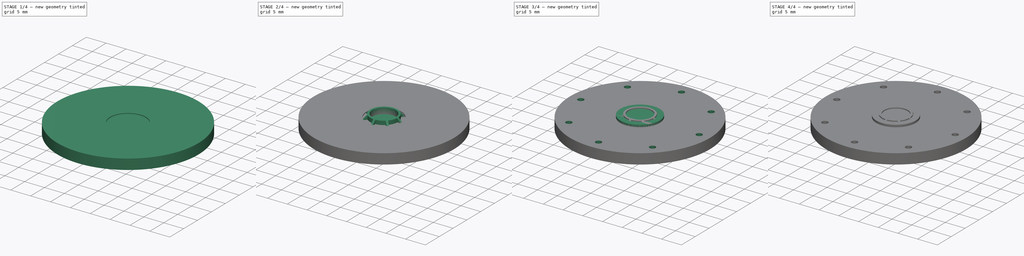
[diagram: build sequence overview — one tinted view per stage of 4, left to right]
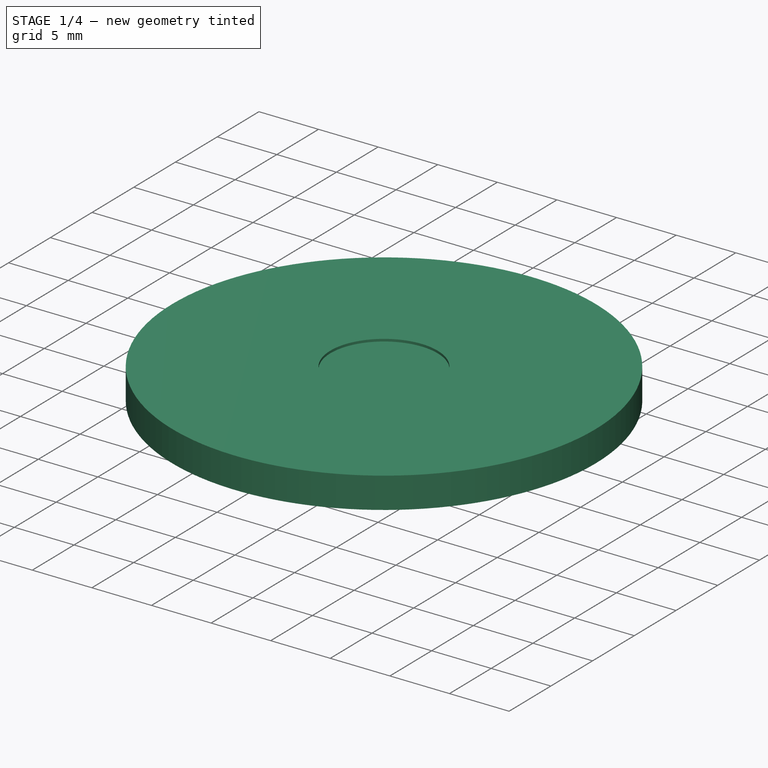
[diagram: stage 1 of 4 — iso view after this stage's code; geometry added in this stage tinted green]
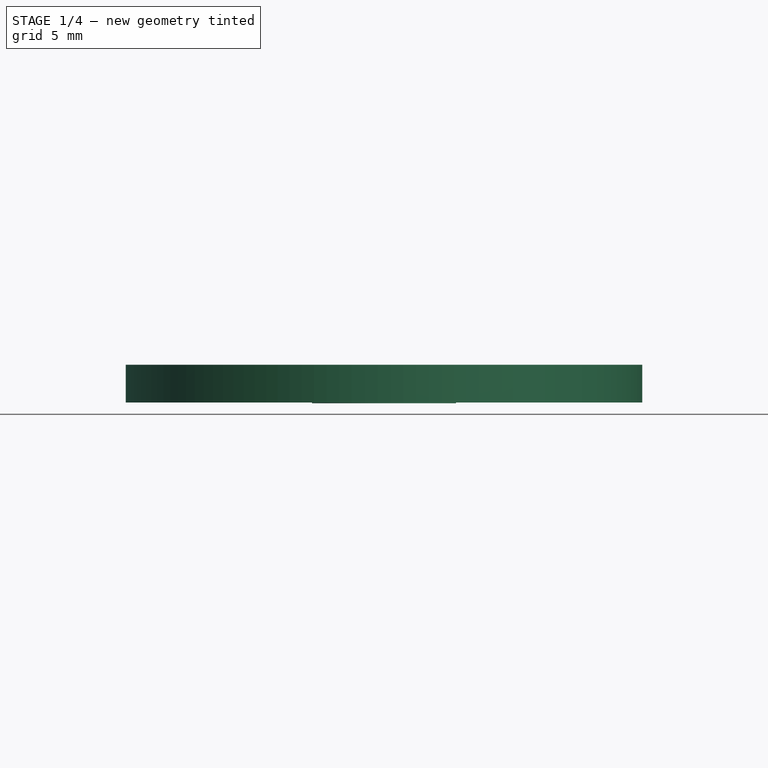
[diagram: stage 1 of 4 — front view after this stage's code; geometry added in this stage tinted green]
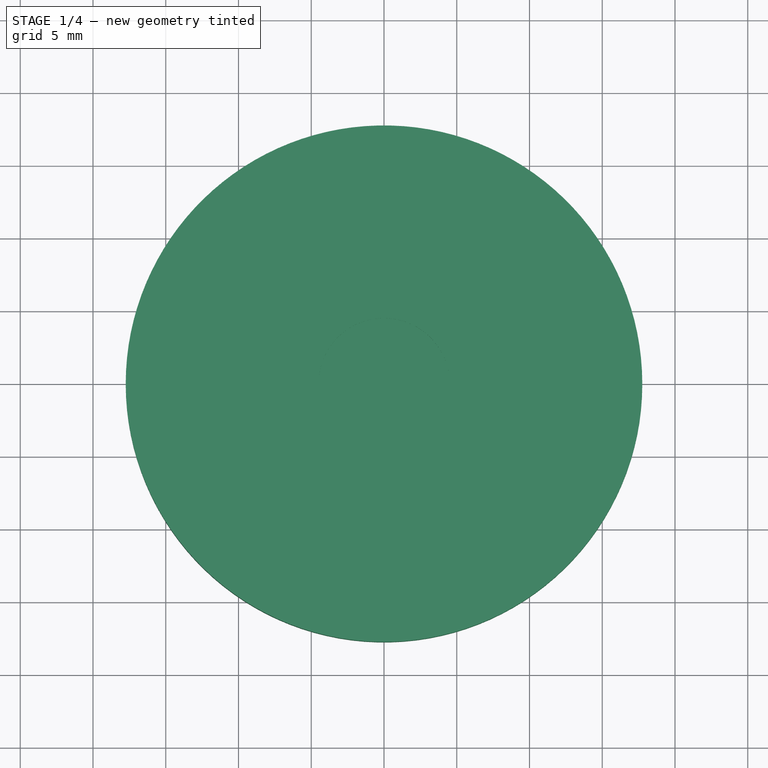
[diagram: stage 1 of 4 — top view after this stage's code; geometry added in this stage tinted green]
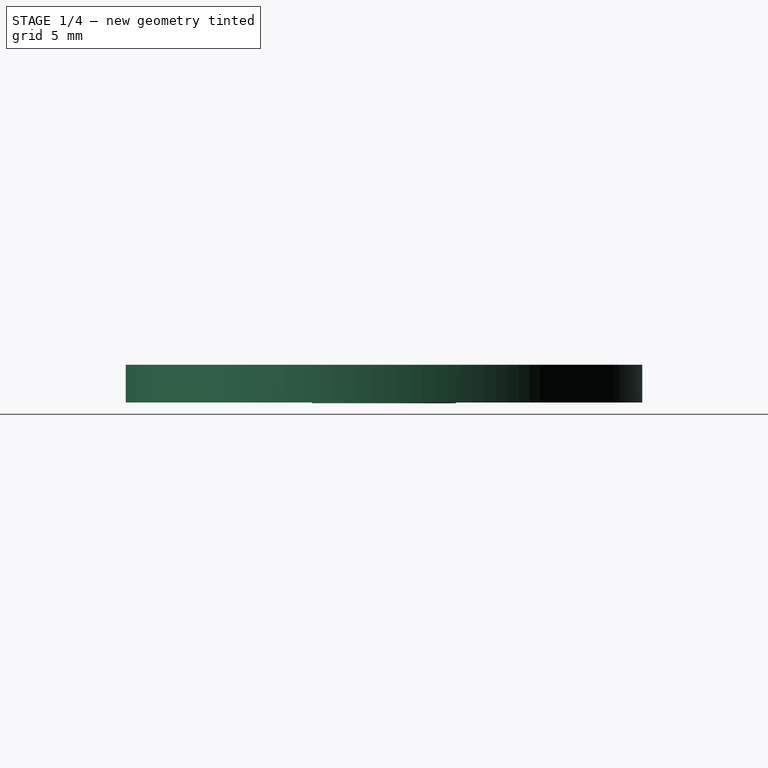
[diagram: stage 1 of 4 — right view after this stage's code; geometry added in this stage tinted green]
FCSTD DOCUMENT  (FreeCAD 0.14R3702 (Git))
Label: Futaba3003-big-rounded-horn
License: CC-BY 3.0
LicenseURL: http://creativecommons.org/licenses/by/3.0/
objects: Sketcher::SketchObject×10, PartDesign::Pocket×6, PartDesign::Pad×2, PartDesign::Revolution×2, PartDesign::PolarPattern×2, App::DocumentObjectGroup×2, Part::Feature×2, Part::MultiFuse×1
note: 35 computed .brp shape members not serialized (recipe doc carries the construction recipe); baked Part::Feature solids carry a one-line shape summary decoded from their .brp

FEATURE [Sketcher::SketchObject] Sketch  label="big-rounded-horn-body-sketch"
  sketch-geometry (1):
    g0: Circle CenterX=0 CenterY=0 CenterZ=0 NormalX=0 NormalY=0 NormalZ=1 Radius=17.75
  constraints (2):
    c: Coincident(g0,g-1)
    c: Radius(g0) = 17.75
FEATURE [PartDesign::Pad] Pad  label="big-rounded-horn-body"
  Length = 2.6
  Length2 = 100
  Sketch = -> Sketch
  Type = 0
FEATURE [Sketcher::SketchObject] Sketch001  label="top-circle-1-sketch"
  Placement = pos=(0,0,2.6) rot=(0,0,1;0rad)
  Support = -> Pad [Face3]
  sketch-geometry (1):
    g0: Circle CenterX=0 CenterY=0 CenterZ=0 NormalX=0 NormalY=0 NormalZ=1 Radius=4.5
  constraints (2):
    c: Coincident(g0,g-1)
    c: Radius(g0) = 4.5
FEATURE [PartDesign::Pocket] Pocket  label="top-circle-1"
  Length = 0.2
  Sketch = -> Sketch001
  Type = 0
FEATURE [Sketcher::SketchObject] Sketch002  label="bottom-circle-1-sketch"
  Placement = pos=(0,0,0) rot=(1,0,0;3.14159rad)
  Support = -> Pocket [Face2]
  sketch-geometry (1):
    g0: Circle CenterX=0 CenterY=0 CenterZ=0 NormalX=0 NormalY=0 NormalZ=1 Radius=4.95
  constraints (2):
    c: Coincident(g0,g-1)
    c: Radius(g0) = 4.95
FEATURE [PartDesign::Pad] Pad001  label="bottom-circle-001"
  Length = 0.05
  Length2 = 100
  Sketch = -> Sketch002
  Type = 0
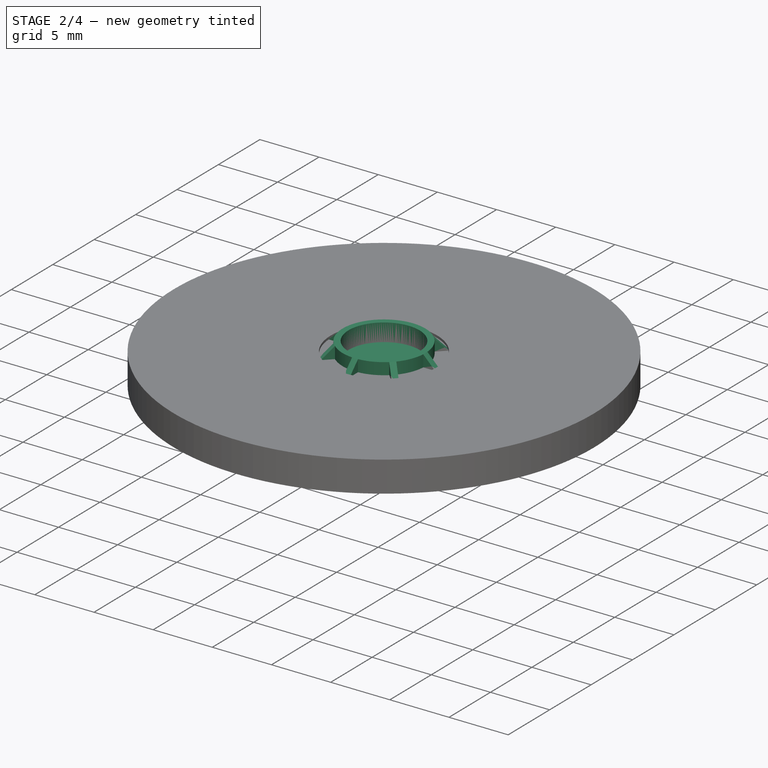
[diagram: stage 2 of 4 — iso view after this stage's code; geometry added in this stage tinted green]
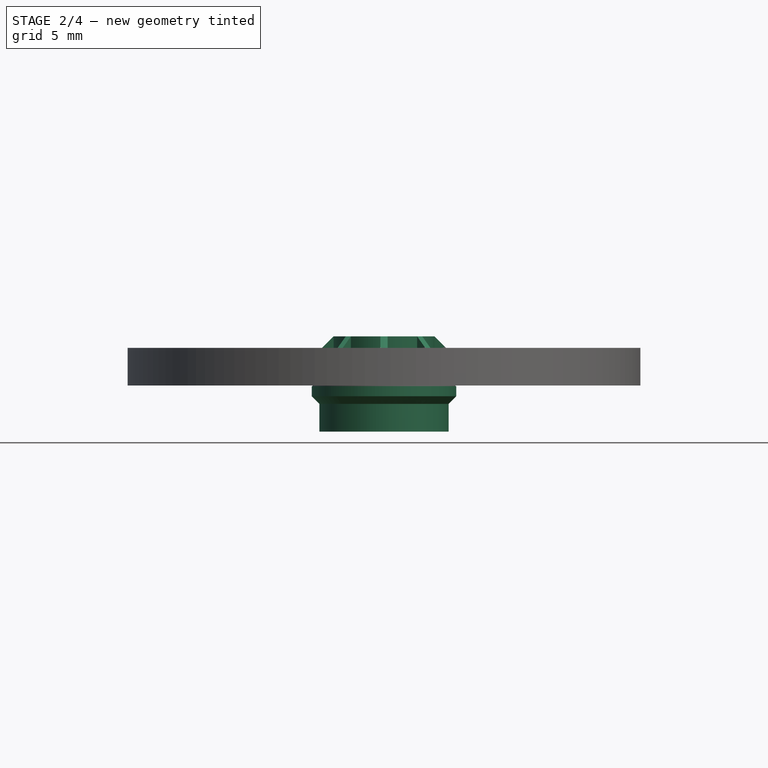
[diagram: stage 2 of 4 — front view after this stage's code; geometry added in this stage tinted green]
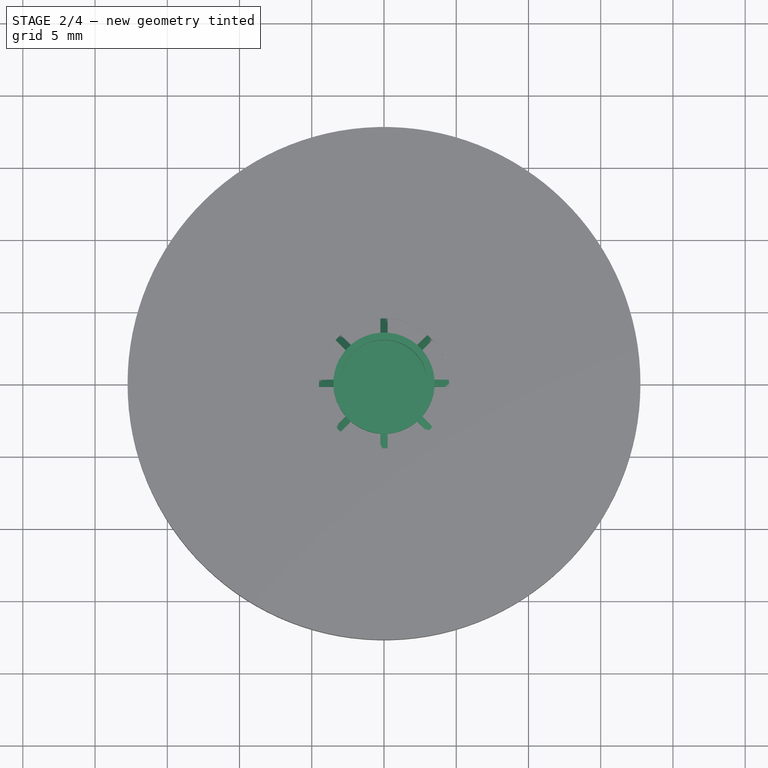
[diagram: stage 2 of 4 — top view after this stage's code; geometry added in this stage tinted green]
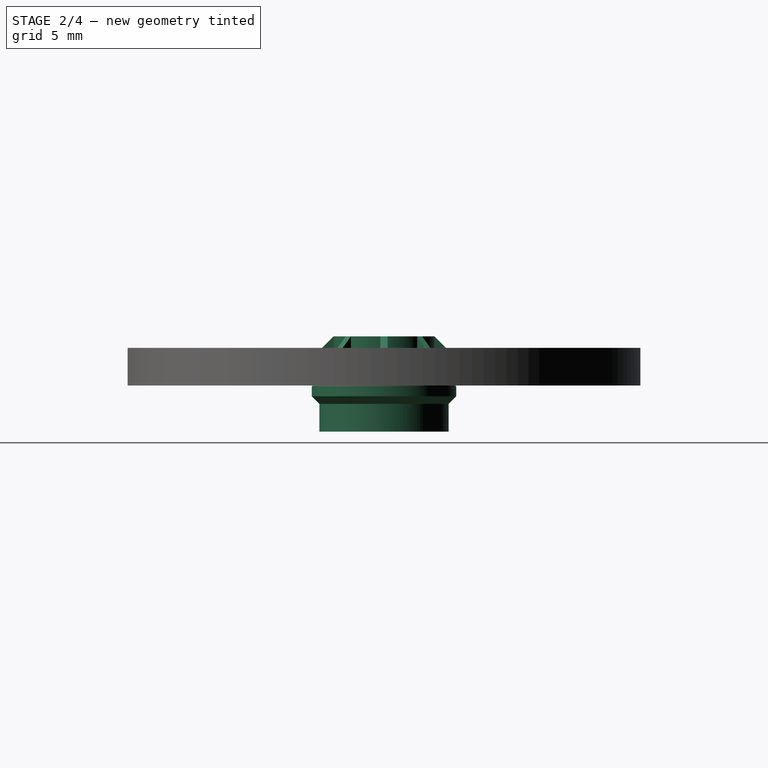
[diagram: stage 2 of 4 — right view after this stage's code; geometry added in this stage tinted green]
FEATURE [App::DocumentObjectGroup] Group001  label="bottom-part-group"
  Group = -> [Revolution001]
FEATURE [Part::Feature] Revolution001001  label="bottom-part"
  Placement = pos=(0,0,-3.2) rot=(1,0,0;1.5708rad)
  shape: bbox 10 x 10 x 3.15 mm, 5 faces (baked)
FEATURE [Part::MultiFuse] Fusion  label="big-rounded-horn-1"
  Shapes = -> [Pad001,PolarPattern001,Revolution001001]
FEATURE [Sketcher::SketchObject] Sketch006
  Placement = pos=(0,0,-3.2) rot=(1,0,0;3.14159rad)
  Support = -> Fusion [Face1]
  sketch-geometry (1):
    g0: Circle CenterX=0 CenterY=0 CenterZ=0 NormalX=0 NormalY=0 NormalZ=1 Radius=2.585
  constraints (2):
    c: Coincident(g0,g-1)
    c: Radius(g0) = 2.585
FEATURE [PartDesign::Pocket] Pocket002
  Length = 3.6
  Sketch = -> Sketch006
  Type = 0
FEATURE [Sketcher::SketchObject] Sketch007
  Placement = pos=(0,0,3.4) rot=(0,0,1;0rad)
  Support = -> Pocket002 [Face30]
  sketch-geometry (1):
    g0: Circle CenterX=0 CenterY=0 CenterZ=0 NormalX=0 NormalY=0 NormalZ=1 Radius=3
  constraints (2):
    c: Coincident(g0,g-1)
    c: Radius(g0) = 3
FEATURE [PartDesign::Pocket] Pocket003
  Length = 1.5
  Sketch = -> Sketch007
  Type = 0
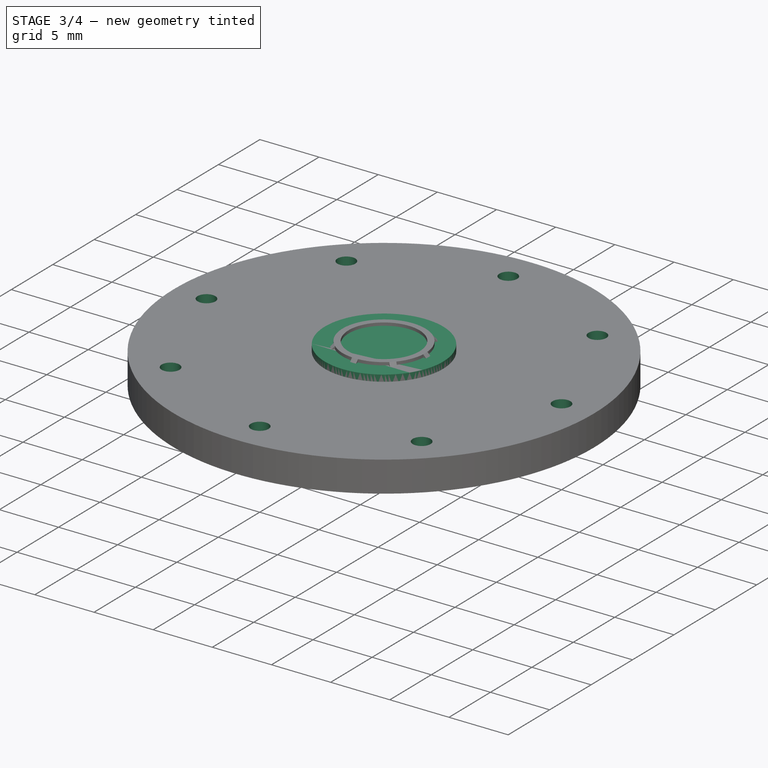
[diagram: stage 3 of 4 — iso view after this stage's code; geometry added in this stage tinted green]
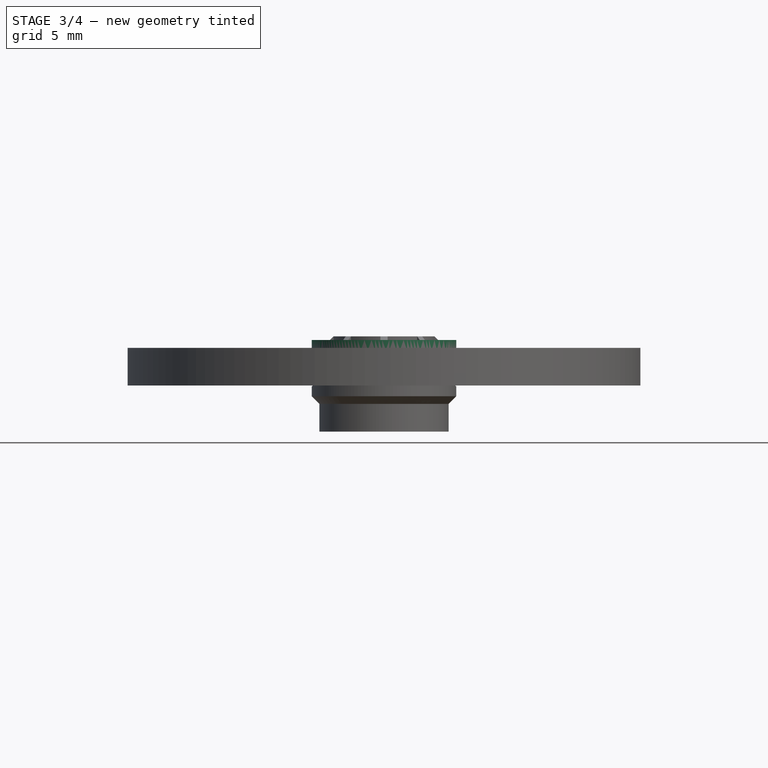
[diagram: stage 3 of 4 — front view after this stage's code; geometry added in this stage tinted green]
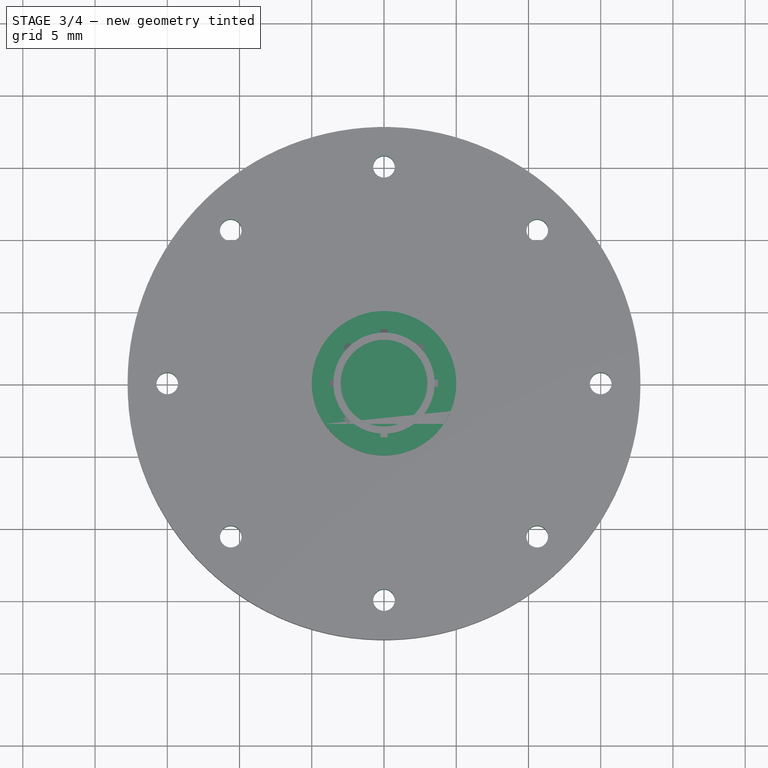
[diagram: stage 3 of 4 — top view after this stage's code; geometry added in this stage tinted green]
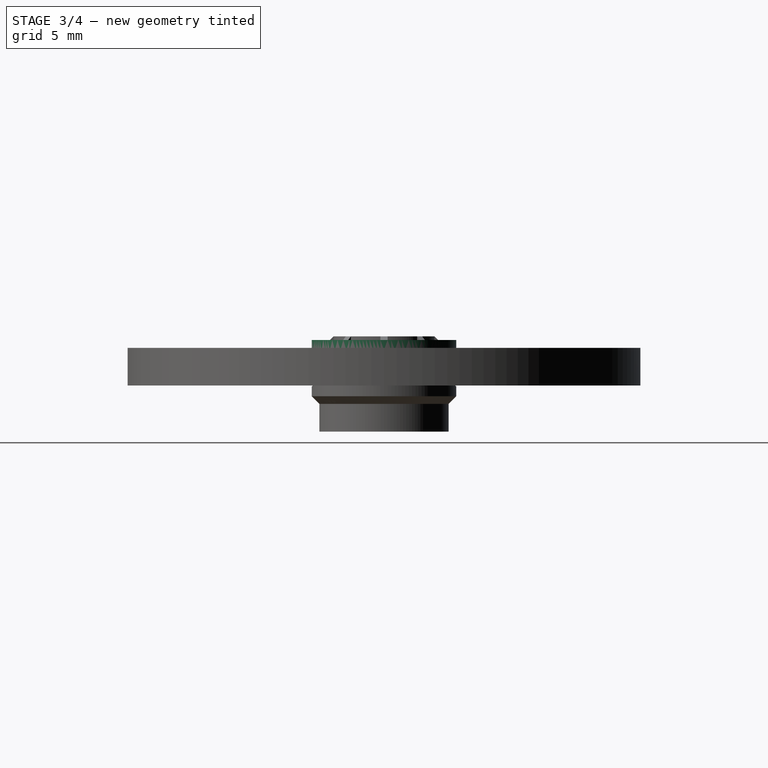
[diagram: stage 3 of 4 — right view after this stage's code; geometry added in this stage tinted green]
FEATURE [App::DocumentObjectGroup] Group  label="top-part-group"
  Group = -> [Revolution,Pocket001,PolarPattern]
FEATURE [Part::Feature] PolarPattern001  label="top-part"
  Placement = pos=(0,0,2.4) rot=(1,0,0;1.5708rad)
  shape: bbox 9 x 9 x 1 mm, 35 faces (baked)
FEATURE [Sketcher::SketchObject] Sketch005  label="bottom-part-1-sketch"
  Placement = pos=(0,0,0) rot=(1,0,0;1.5708rad)
  sketch-geometry (6):
    g0: LineSegment StartX=0 StartY=0 StartZ=0 EndX=4.475 EndY=0 EndZ=0
    g1: LineSegment StartX=4.475 StartY=0 StartZ=0 EndX=4.475 EndY=1.925 EndZ=0
    g2: LineSegment StartX=4.475 StartY=1.925 StartZ=0 EndX=5 EndY=2.45 EndZ=0
    g3: LineSegment StartX=5 StartY=2.45 StartZ=0 EndX=5 EndY=3.15 EndZ=0
    g4: LineSegment StartX=5 StartY=3.15 StartZ=0 EndX=0 EndY=3.15 EndZ=0
    g5: LineSegment StartX=0 StartY=3.15 StartZ=0 EndX=0 EndY=0 EndZ=0
  constraints (17):
    c: Horizontal(g0)
    c: Coincident(g0,g1)
    c: Vertical(g1)
    c: Coincident(g1,g2)
    c: Coincident(g2,g3)
    c: Vertical(g3)
    c: Coincident(g3,g4)
    c: Horizontal(g4)
    c: Coincident(g4,g5)
    c: Coincident(g5,g0)
    c: Vertical(g5)
    c: Coincident(g0,g-1)
    c: DistanceY(g5) = -3.15
    c: DistanceX(g4) = -5
    c: DistanceX(g0) = 4.475
    c: Angle(g2,g-1) = 2.35619
    c: DistanceY(g3) = 0.7
FEATURE [PartDesign::Revolution] Revolution001  label="bottom-part-1"
  Angle = 360
  Axis = (0,0,1)
  Base = (0,0,0)
  Placement = pos=(0,0,0) rot=(1,0,0;1.5708rad)
  ReferenceAxis = -> Sketch005 [V_Axis]
  Reversed = true
  Sketch = -> Sketch005
FEATURE [Sketcher::SketchObject] Sketch008
  Placement = pos=(0,0,1.9) rot=(0,0,1;0rad)
  Support = -> Pocket003 [Face56]
  sketch-geometry (1):
    g0: Circle CenterX=0 CenterY=0 CenterZ=0 NormalX=0 NormalY=0 NormalZ=1 Radius=1.5
  constraints (2):
    c: Coincident(g0,g-1)
    c: Radius(g0) = 1.5
FEATURE [PartDesign::Pocket] Pocket004
  Length = 5
  Sketch = -> Sketch008
  Type = 1
FEATURE [Sketcher::SketchObject] Sketch009  label="drill-master-sketch"
  Placement = pos=(0,0,2.6) rot=(0,0,1;0rad)
  Support = -> Pocket004 [Face32]
  sketch-geometry (1):
    g0: Circle CenterX=0 CenterY=15 CenterZ=0 NormalX=0 NormalY=0 NormalZ=1 Radius=0.75
  constraints (3):
    c: PointOnObject(g0,g-2)
    c: Radius(g0) = 0.75
    c: DistanceY(g-1,g0) = 15
FEATURE [PartDesign::Pocket] Pocket005  label="drill-master"
  Length = 5
  Sketch = -> Sketch009
  Type = 1
FEATURE [PartDesign::PolarPattern] PolarPattern002  label="big-rounded-horn-final"
  Angle = 360
  Axis = -> Sketch009 [N_Axis]
  Occurrences = 8
  Originals = -> [Pocket005]
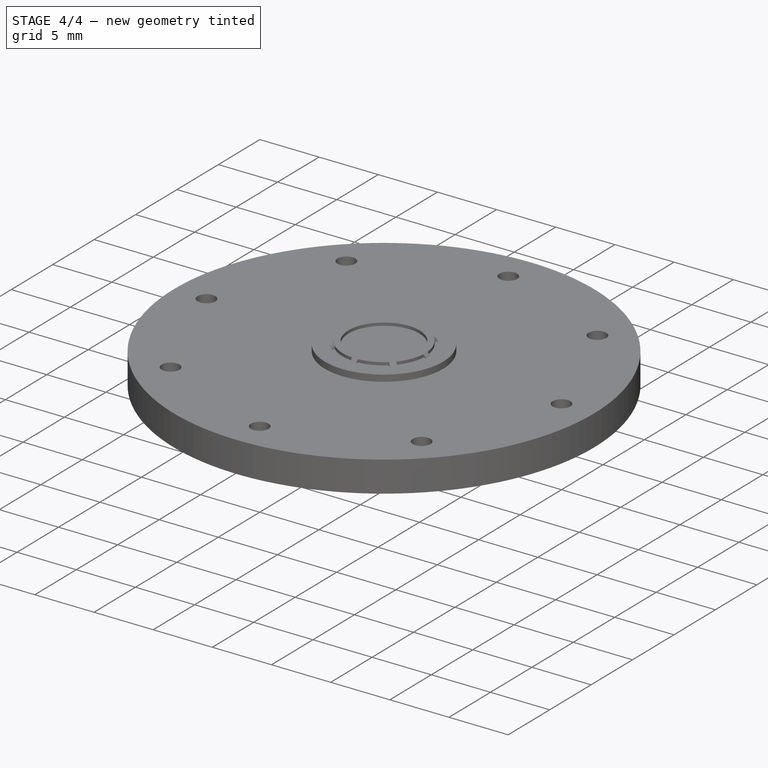
[diagram: stage 4 of 4 — iso view after this stage's code; geometry added in this stage tinted green]
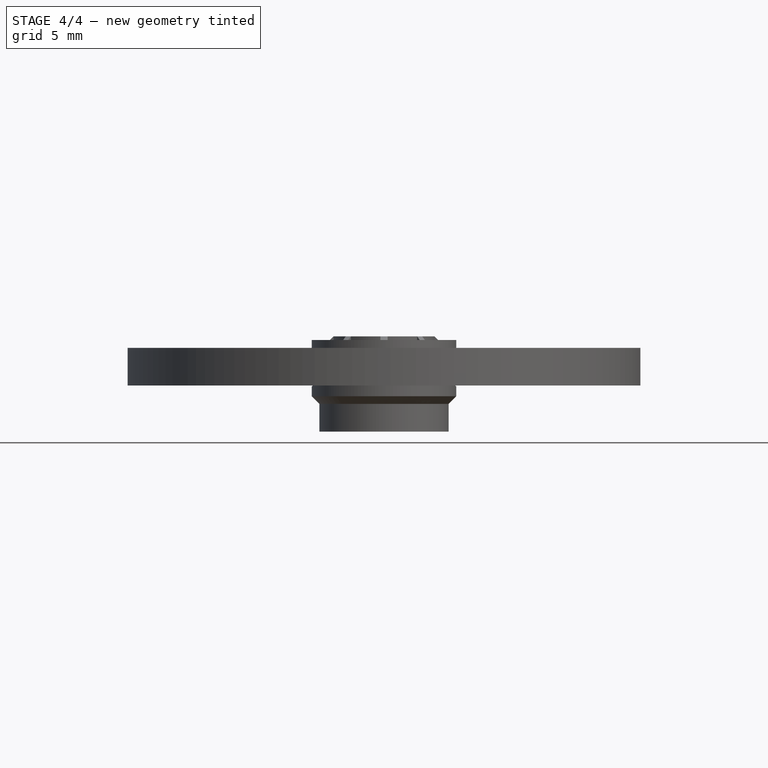
[diagram: stage 4 of 4 — front view after this stage's code; geometry added in this stage tinted green]
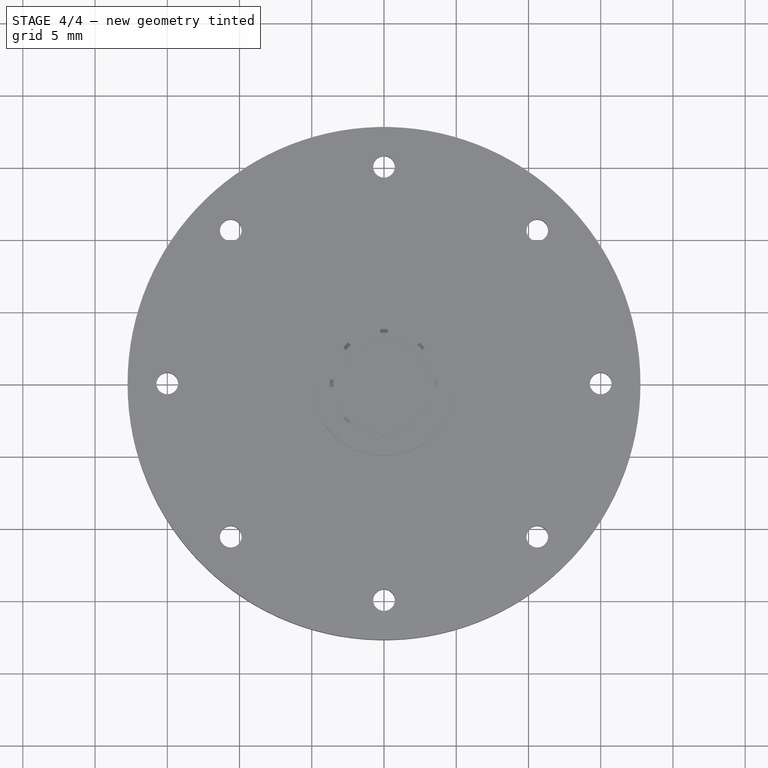
[diagram: stage 4 of 4 — top view after this stage's code; geometry added in this stage tinted green]
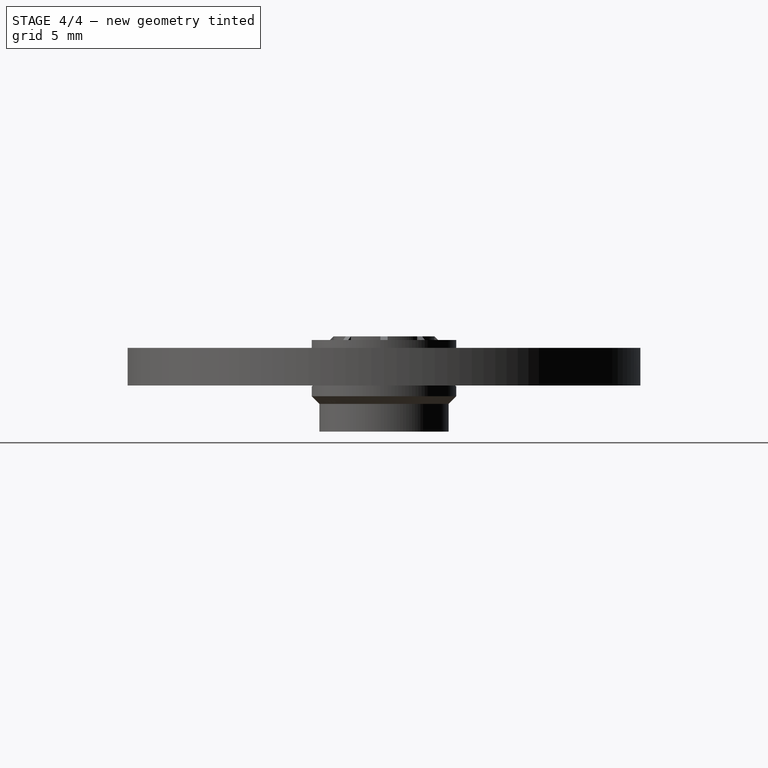
[diagram: stage 4 of 4 — right view after this stage's code; geometry added in this stage tinted green]
FEATURE [Sketcher::SketchObject] Sketch003  label="top-part-1-sketch"
  Placement = pos=(0,0,0) rot=(1,0,0;1.5708rad)
  sketch-geometry (4):
    g0: LineSegment StartX=3.5 StartY=1 StartZ=0 EndX=0 EndY=1 EndZ=0
    g1: LineSegment StartX=0 StartY=1 StartZ=0 EndX=0 EndY=0 EndZ=0
    g2: LineSegment StartX=0 StartY=0 StartZ=0 EndX=4.5 EndY=0 EndZ=0
    g3: LineSegment StartX=4.5 StartY=0 StartZ=0 EndX=3.5 EndY=1 EndZ=0
  constraints (11):
    c: Horizontal(g0)
    c: Coincident(g0,g1)
    c: Vertical(g1)
    c: Coincident(g1,g2)
    c: Horizontal(g2)
    c: Coincident(g2,g3)
    c: Coincident(g3,g0)
    c: Coincident(g1,g-1)
    c: DistanceX(g2) = 4.5
    c: DistanceX(g0) = -3.5
    c: DistanceY(g1) = -1
FEATURE [PartDesign::Revolution] Revolution  label="top-part-1"
  Angle = 360
  Axis = (0,0,1)
  Base = (0,0,0)
  Placement = pos=(0,0,0) rot=(1,0,0;1.5708rad)
  ReferenceAxis = -> Sketch003 [V_Axis]
  Reversed = true
  Sketch = -> Sketch003
FEATURE [Sketcher::SketchObject] Sketch004  label="top-part-2-sketch"
  ExternalGeometry = -> [Revolution]
  Placement = pos=(0,0,1) rot=(0,0,1;3.14159rad)
  Support = -> Revolution [Face1]
  sketch-geometry (5):
    g0: LineSegment StartX=0.25 StartY=4.79106 StartZ=0 EndX=0.25 EndY=3.49106 EndZ=0
    g1: LineSegment [constr] StartX=0 StartY=0 StartZ=0 EndX=2.47487 EndY=2.47487 EndZ=0
    g2: LineSegment StartX=2.29178 StartY=2.64533 StartZ=0 EndX=3.21101 EndY=3.56457 EndZ=0
    g3: ArcOfCircle CenterX=0 CenterY=0 CenterZ=0 NormalX=0 NormalY=0 NormalZ=1 Radius=3.5 StartAngle=0.856888 EndAngle=1.49931
    g4: ArcOfCircle CenterX=0 CenterY=0 CenterZ=0 NormalX=0 NormalY=0 NormalZ=1 Radius=4.79758 StartAngle=0.837531 EndAngle=1.51866
  constraints (15):
    c: Vertical(g0)
    c: Coincident(g1,g-1)
    c: PointOnObject(g1,g-3)
    c: Angle(g-1,g1) = 0.785398
    c: Parallel(g1,g2)
    c: Equal(g0,g2)
    c: PointOnObject(g0,g-3)
    c: Coincident(g3,g-1)
    c: Coincident(g4,g-1)
    c: Coincident(g3,g0)
    c: Coincident(g2,g3)
    c: DistanceX(g-1,g0) = 0.25
    c: Coincident(g4,g0)
    c: Coincident(g4,g2)
    c: DistanceY(g0) = -1.3
FEATURE [PartDesign::Pocket] Pocket001  label="top-part-2"
  Length = 5
  Placement = pos=(0,0,0) rot=(1,0,0;1.5708rad)
  Sketch = -> Sketch004
  Type = 1
FEATURE [PartDesign::PolarPattern] PolarPattern  label="top-part-3"
  Angle = 360
  Axis = -> Sketch004 [N_Axis]
  Occurrences = 8
  Originals = -> [Pocket001]
  Placement = pos=(0,0,0) rot=(1,0,0;1.5708rad)
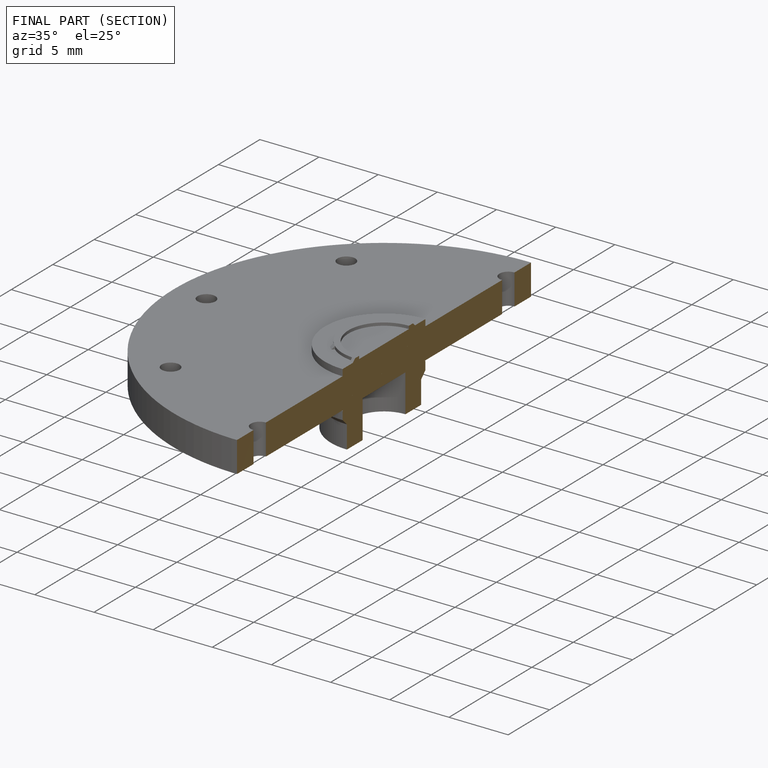
[diagram: finished part — half-section view (interior)]
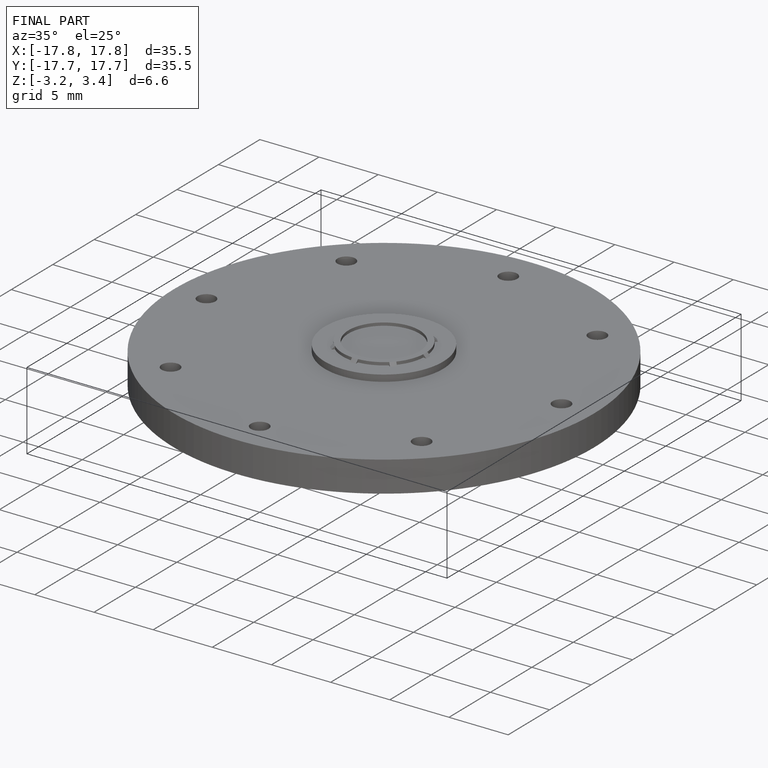
[diagram: finished part — iso view with bounding-box wireframe]
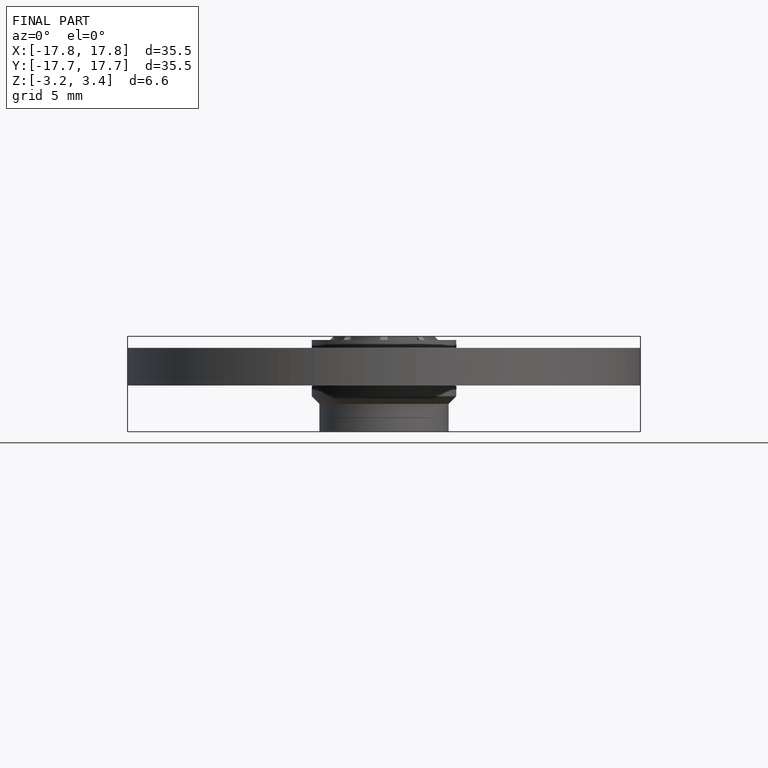
[diagram: finished part — front view with bounding-box wireframe]
